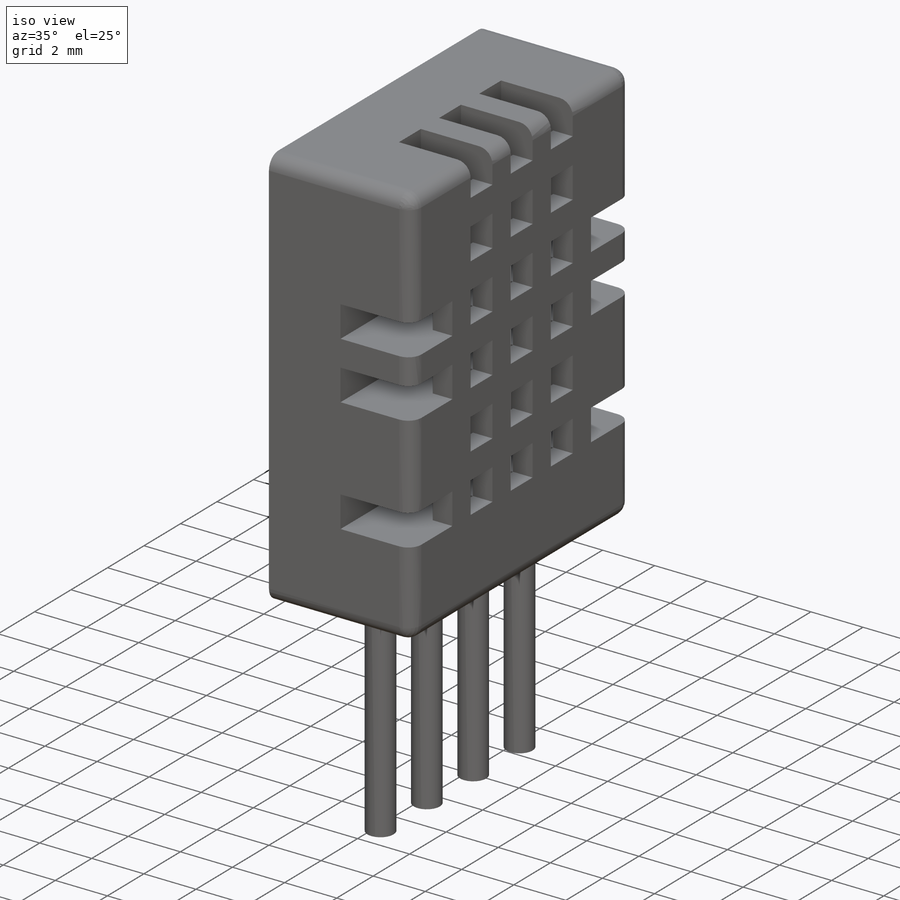
[diagram: iso view]
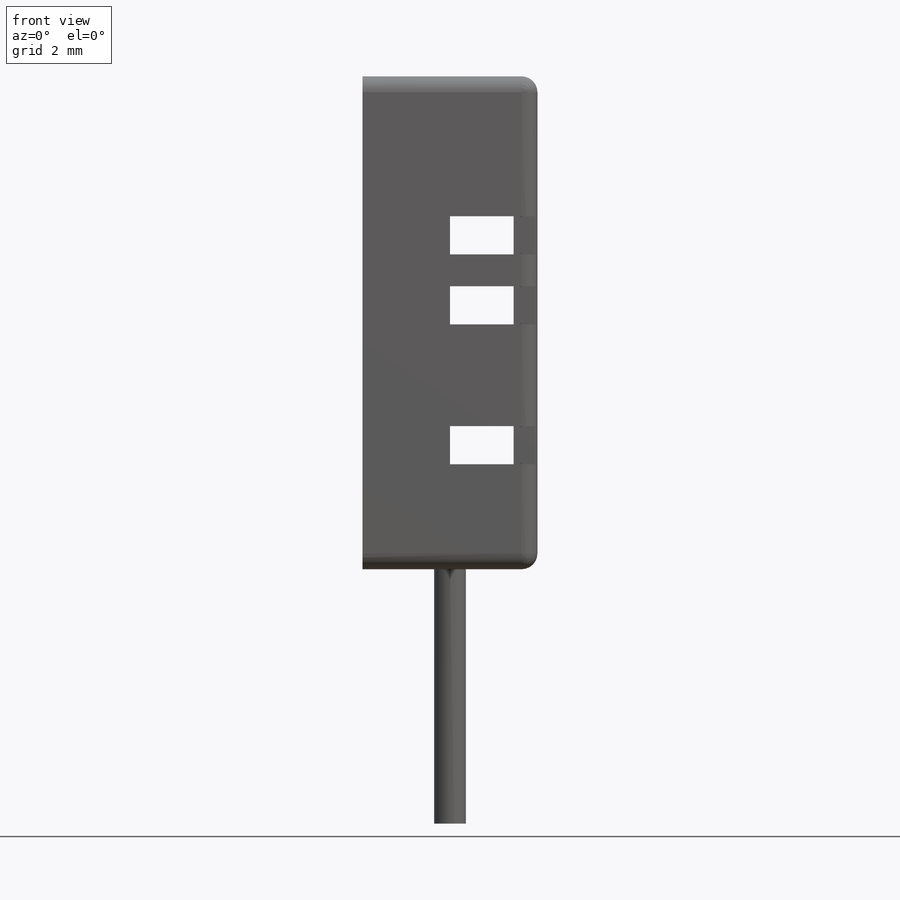
[diagram: front view]
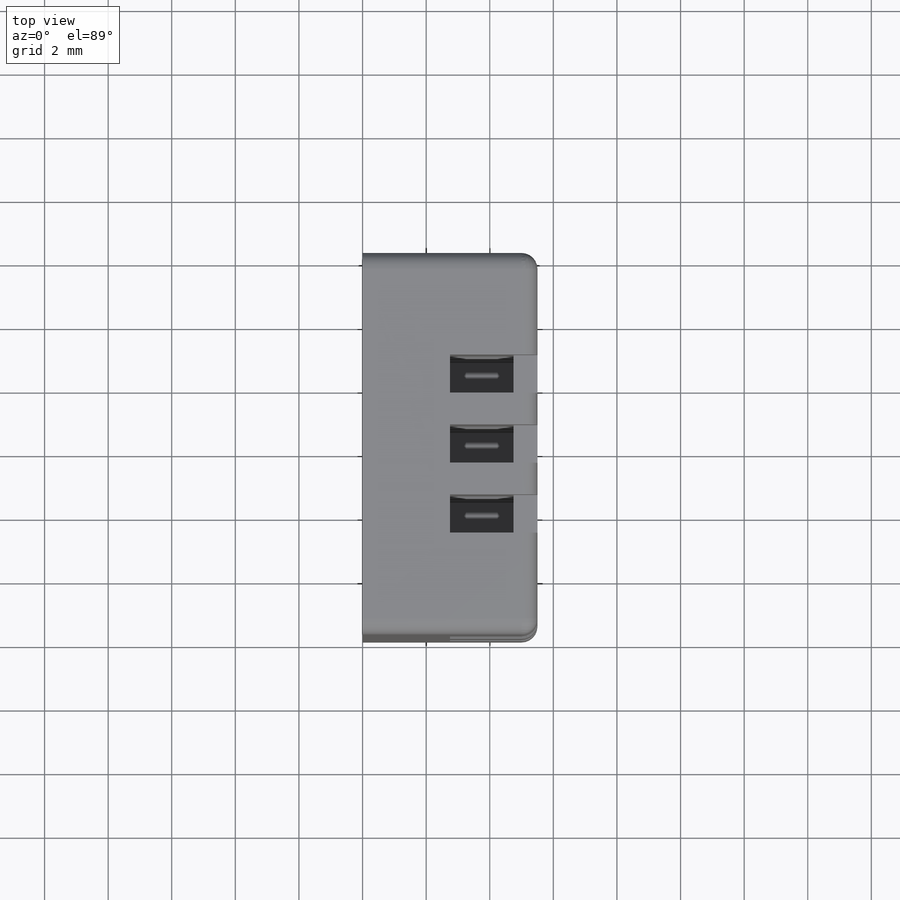
[diagram: top view]
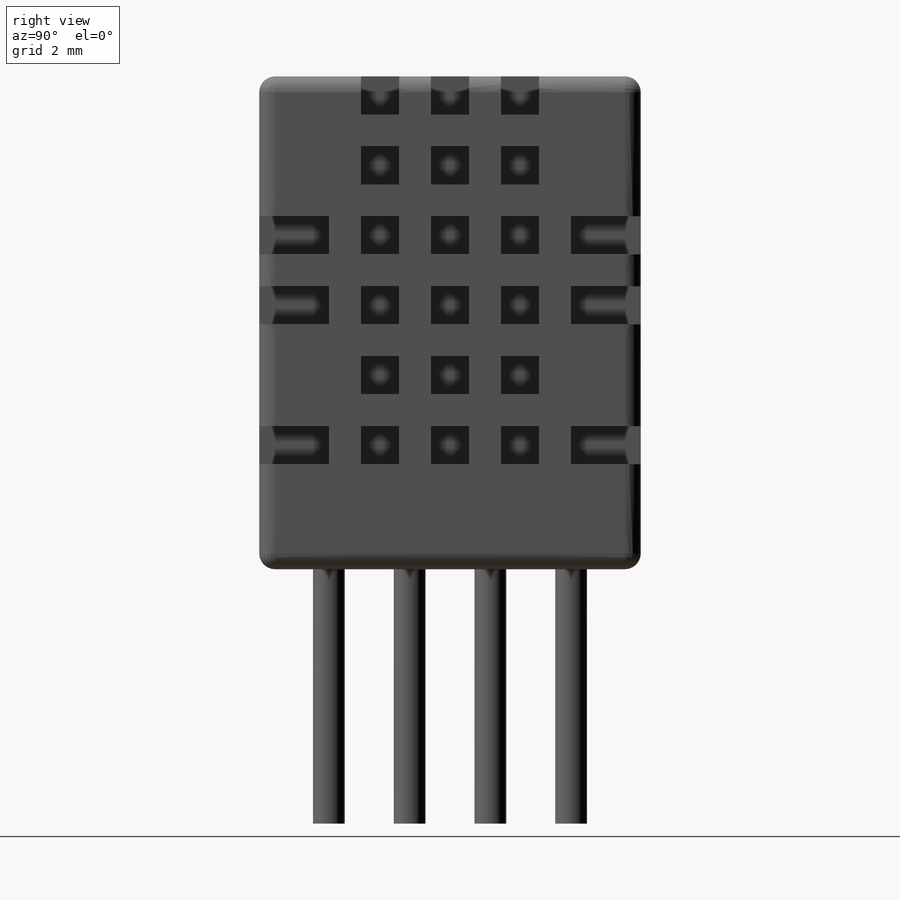
[diagram: right view]
SOLIDWORKS PART (.sldprt)
format: sldprt  version: not decoded by parser v0  size: 488,960 bytes
history: native  units: mm
features: sketch x5, plane x3, cut_extrude x3, extrude x2, fillet x2, material x1 (+9 scaffold rows collapsed)
feature tree (25):
  scaffold x9  (default folders/planes/origin — collapsed)
  material  "Material <sin especificar>"
  plane  "Alzado"
  plane  "Planta"
  plane  "Vista lateral"
  sketch  "Croquis1"  dims[D1=15.5mm D2=12.0mm]
  extrude  "Saliente-Extruir1"  Depth=5.5mm
  sketch  "Croquis2"  dims[D5=1.0mm D6=1.0mm D7=1.0mm D8=1.0mm D1=1.27mm D2=2.54mm D3=1.27mm D4=2.54mm]
  extrude  "Saliente-Extruir2"  Depth=8mm
  sketch  "Croquis3"  dims[D1=0.6mm D2=0.6mm D3=1.2mm D4=1.0mm D5=1.2mm D6=1.2mm D7=1.0mm D8=1.2mm D9=1.0mm D10=1.2mm D11=1.0mm D12=1.2mm D13=1.0mm D14=1.0mm D15=1.0mm D16=1.2mm D17=1.0mm D18=1.2mm D19=1.0mm D20=1.2mm]
  cut_extrude  "Cortar-Extruir1"  Depth=2.75mm
  sketch  "Croquis4"  dims[D1=2.0mm]
  cut_extrude  "Cortar-Extruir2"  [1 undecoded]
  sketch  "Croquis5"  dims[D1=2.0mm]
  cut_extrude  "Cortar-Extruir3"  Depth=15mm
  fillet  "Redondeo1"  Radius=0.5mm
  fillet  "Redondeo2"  Radius=0.5mm
decode coverage: 11 of 12 modeling features carry decoded parameters
note: 1 parameter value undecoded
note: suppression state not decoded; provenance and decode notes live in map.json
